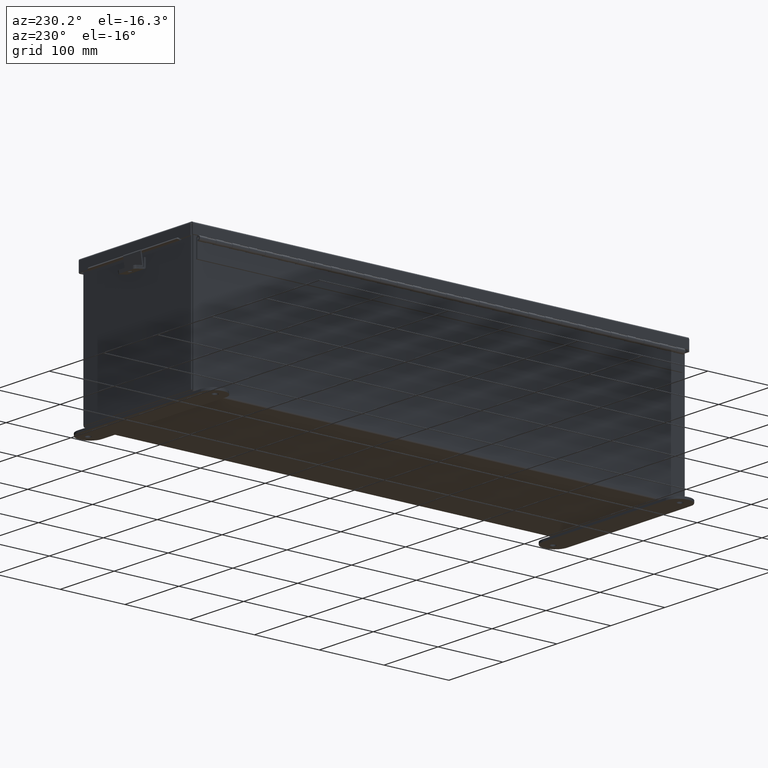
[diagram: clean part render]
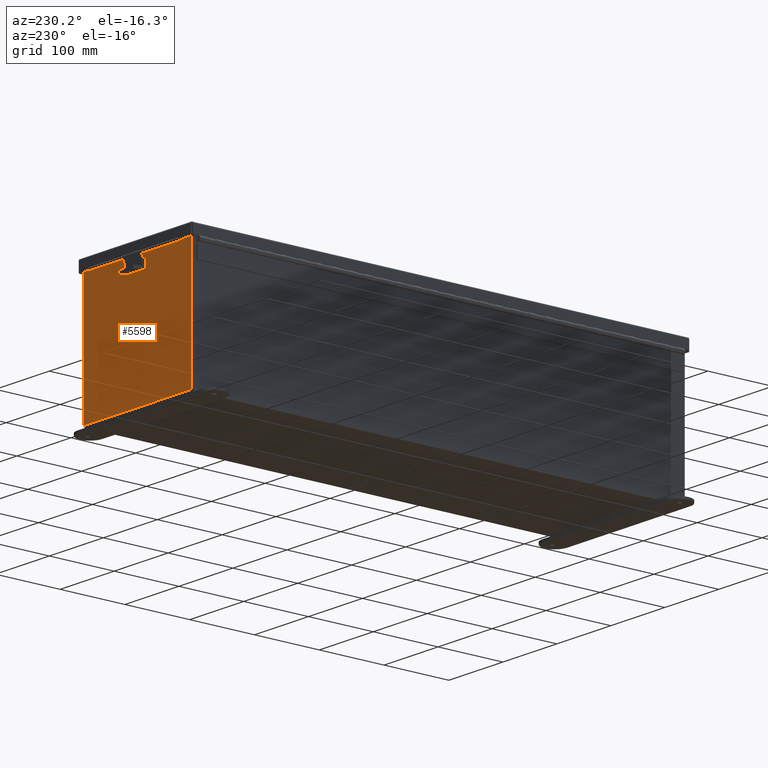
[diagram: same view with one face highlighted and labeled with its STEP entity id]
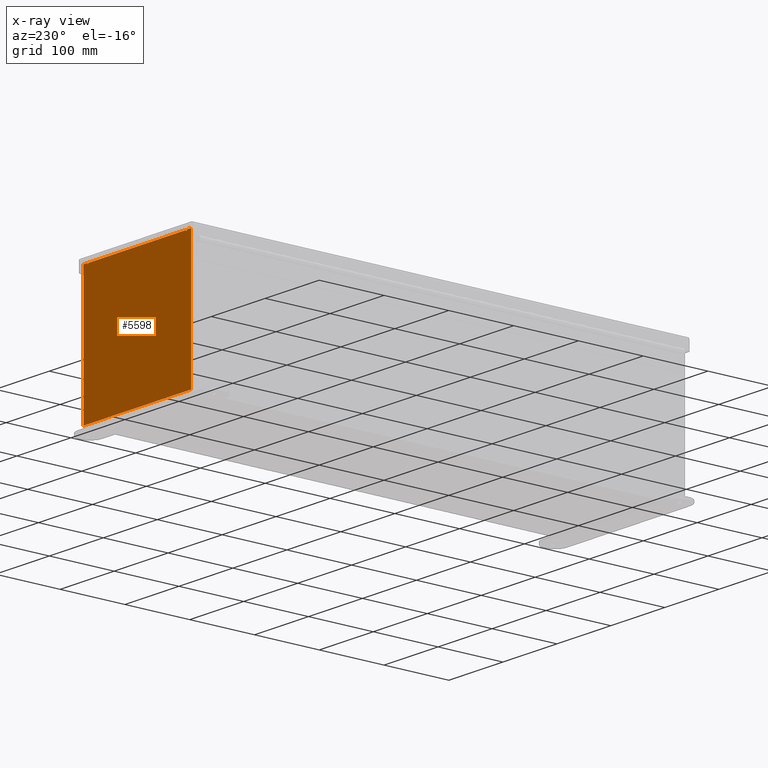
[diagram: x-ray of the same camera — body ghosted, the highlighted face saturated]
A machine part, auxiliary view. The second image highlights one B-rep face of the part: STEP entity #5598.
The next image is the same camera in x-ray: the body ghosted, the highlighted face saturated — about 0% of this face is hidden behind the body in this view.
In plain terms, the highlighted planar face has unit normal (0, -1, 0).
Its self-contained STEP definition (entity closure, byte-faithful):
#1 = DIRECTION ( 'NONE',  ( 0.0000000000000000000, 0.0000000000000000000, 1.000000000000000000 ) ) ;
#317 = AXIS2_PLACEMENT_3D ( 'NONE', #21080, #8967, #23112 ) ;
#1157 = CARTESIAN_POINT ( 'NONE',  ( -3.619650000000000500, 0.0000000000000000000, 3.874949999999998300 ) ) ;
#1283 = CARTESIAN_POINT ( 'NONE',  ( -3.925300000000000500, 0.0000000000000000000, 3.925299999999999600 ) ) ;
#1694 = EDGE_CURVE ( 'NONE', #21033, #24131, #12724, .T. ) ;
#1924 = ORIENTED_EDGE ( 'NONE', *, *, #1694, .F. ) ;
#2482 = VECTOR ( 'NONE', #17531, 39.37007874015748100 ) ;
#3112 = LINE ( 'NONE', #23571, #2482 ) ;
#3298 = VERTEX_POINT ( 'NONE', #21872 ) ;
#3884 = DIRECTION ( 'NONE',  ( -2.170286390199978800E-014, 0.0000000000000000000, -1.000000000000000000 ) ) ;
#3994 = VERTEX_POINT ( 'NONE', #11579 ) ;
#4428 = AXIS2_PLACEMENT_3D ( 'NONE', #23076, #19080, #6979 ) ;
#4544 = CARTESIAN_POINT ( 'NONE',  ( -3.582300000000000000, 0.0000000000000000000, 3.874949999999998300 ) ) ;
#4545 = ORIENTED_EDGE ( 'NONE', *, *, #25645, .F. ) ;
#4596 = VERTEX_POINT ( 'NONE', #25622 ) ;
#4970 = PLANE ( 'NONE',  #4428 ) ;
#5030 = CARTESIAN_POINT ( 'NONE',  ( 3.600974999999999100, 0.0000000000000000000, 3.874949999999998300 ) ) ;
#5077 = LINE ( 'NONE', #22023, #20553 ) ;
#5239 = LINE ( 'NONE', #1283, #8704 ) ;
#5598 = ADVANCED_FACE ( 'NONE', ( #17293 ), #4970, .F. ) ;
#5805 = CARTESIAN_POINT ( 'NONE',  ( 3.582299999999999200, 0.0000000000000000000, 3.874949999999998300 ) ) ;
#5943 = EDGE_CURVE ( 'NONE', #18909, #17115, #21078, .T. ) ;
#6030 = CARTESIAN_POINT ( 'NONE',  ( 3.582299999999999200, 0.0000000000000000000, 0.0000000000000000000 ) ) ;
#6213 = VECTOR ( 'NONE', #7089, 39.37007874015748100 ) ;
#6712 = EDGE_CURVE ( 'NONE', #6801, #25516, #5239, .T. ) ;
#6801 = VERTEX_POINT ( 'NONE', #9589 ) ;
#6903 = VERTEX_POINT ( 'NONE', #5805 ) ;
#6979 = DIRECTION ( 'NONE',  ( 0.0000000000000000000, -0.0000000000000000000, -1.000000000000000000 ) ) ;
#7036 = DIRECTION ( 'NONE',  ( 0.0000000000000000000, 0.0000000000000000000, -1.000000000000000000 ) ) ;
#7089 = DIRECTION ( 'NONE',  ( 0.0000000000000000000, 0.0000000000000000000, -1.000000000000000000 ) ) ;
#7628 = DIRECTION ( 'NONE',  ( 1.000000000000000000, 0.0000000000000000000, 0.0000000000000000000 ) ) ;
#8642 = CARTESIAN_POINT ( 'NONE',  ( -3.619650000000000500, 0.0000000000000000000, 3.925299999999999600 ) ) ;
#8704 = VECTOR ( 'NONE', #15410, 39.37007874015748100 ) ;
#8967 = DIRECTION ( 'NONE',  ( -0.0000000000000000000, 1.000000000000000000, -0.0000000000000000000 ) ) ;
#9015 = VECTOR ( 'NONE', #23066, 39.37007874015748100 ) ;
#9090 = EDGE_CURVE ( 'NONE', #3298, #6903, #14254, .T. ) ;
#9257 = EDGE_CURVE ( 'NONE', #3994, #9715, #19975, .T. ) ;
#9589 = CARTESIAN_POINT ( 'NONE',  ( 3.619650000000000500, 0.0000000000000000000, 3.925299999999999600 ) ) ;
#9715 = VERTEX_POINT ( 'NONE', #13519 ) ;
#10821 = VECTOR ( 'NONE', #1, 39.37007874015748100 ) ;
#10946 = CARTESIAN_POINT ( 'NONE',  ( -3.925300000000000500, 0.0000000000000000000, 3.925299999999999600 ) ) ;
#10974 = DIRECTION ( 'NONE',  ( 1.000000000000000000, 0.0000000000000000000, 0.0000000000000000000 ) ) ;
#11216 = ORIENTED_EDGE ( 'NONE', *, *, #21464, .F. ) ;
#11465 = EDGE_CURVE ( 'NONE', #24131, #26134, #12940, .T. ) ;
#11579 = CARTESIAN_POINT ( 'NONE',  ( -3.582300000000000000, 2.185478394931410600E-015, 3.912299999999999700 ) ) ;
#12325 = VECTOR ( 'NONE', #15021, 39.37007874015748100 ) ;
#12372 = ORIENTED_EDGE ( 'NONE', *, *, #11465, .F. ) ;
#12724 = CIRCLE ( 'NONE', #317, 0.01867500000000003900 ) ;
#12818 = VECTOR ( 'NONE', #10974, 39.37007874015748100 ) ;
#12940 = LINE ( 'NONE', #14912, #12325 ) ;
#13519 = CARTESIAN_POINT ( 'NONE',  ( 3.582299999999999200, 0.0000000000000000000, 3.912299999999999700 ) ) ;
#14254 = CIRCLE ( 'NONE', #19051, 0.01867500000000003900 ) ;
#14361 = LINE ( 'NONE', #10946, #9015 ) ;
#14912 = CARTESIAN_POINT ( 'NONE',  ( -3.619650000000000500, 0.0000000000000000000, 0.0000000000000000000 ) ) ;
#14925 = EDGE_CURVE ( 'NONE', #4596, #26134, #24884, .T. ) ;
#14979 = EDGE_CURVE ( 'NONE', #3994, #21033, #19483, .T. ) ;
#15021 = DIRECTION ( 'NONE',  ( 0.0000000000000000000, 0.0000000000000000000, 1.000000000000000000 ) ) ;
#15189 = ORIENTED_EDGE ( 'NONE', *, *, #15550, .T. ) ;
#15410 = DIRECTION ( 'NONE',  ( 1.000000000000000000, 0.0000000000000000000, 0.0000000000000000000 ) ) ;
#15550 = EDGE_CURVE ( 'NONE', #17115, #4596, #14361, .T. ) ;
#16658 = ORIENTED_EDGE ( 'NONE', *, *, #9257, .T. ) ;
#17115 = VERTEX_POINT ( 'NONE', #26235 ) ;
#17293 = FACE_OUTER_BOUND ( 'NONE', #22407, .T. ) ;
#17531 = DIRECTION ( 'NONE',  ( 0.0000000000000000000, 0.0000000000000000000, -1.000000000000000000 ) ) ;
#18909 = VERTEX_POINT ( 'NONE', #23090 ) ;
#19000 = CARTESIAN_POINT ( 'NONE',  ( -3.925300000000000500, 0.0000000000000000000, 3.925299999999999600 ) ) ;
#19051 = AXIS2_PLACEMENT_3D ( 'NONE', #5030, #19153, #7036 ) ;
#19080 = DIRECTION ( 'NONE',  ( 0.0000000000000000000, -1.000000000000000000, 0.0000000000000000000 ) ) ;
#19153 = DIRECTION ( 'NONE',  ( -0.0000000000000000000, 1.000000000000000000, -0.0000000000000000000 ) ) ;
#19336 = VECTOR ( 'NONE', #7628, 39.37007874015748100 ) ;
#19483 = LINE ( 'NONE', #21214, #6213 ) ;
#19624 = ORIENTED_EDGE ( 'NONE', *, *, #14979, .F. ) ;
#19757 = ORIENTED_EDGE ( 'NONE', *, *, #5943, .T. ) ;
#19800 = VECTOR ( 'NONE', #23135, 39.37007874015748100 ) ;
#19975 = LINE ( 'NONE', #25871, #19336 ) ;
#20553 = VECTOR ( 'NONE', #3884, 39.37007874015748100 ) ;
#21033 = VERTEX_POINT ( 'NONE', #4544 ) ;
#21078 = LINE ( 'NONE', #21108, #19800 ) ;
#21080 = CARTESIAN_POINT ( 'NONE',  ( -3.600975000000000000, 0.0000000000000000000, 3.874949999999998300 ) ) ;
#21108 = CARTESIAN_POINT ( 'NONE',  ( -3.925300000000000500, 0.0000000000000000000, -3.925300000000000500 ) ) ;
#21214 = CARTESIAN_POINT ( 'NONE',  ( -3.582300000000000000, 0.0000000000000000000, 0.0000000000000000000 ) ) ;
#21464 = EDGE_CURVE ( 'NONE', #6801, #3298, #5077, .T. ) ;
#21571 = LINE ( 'NONE', #6030, #10821 ) ;
#21757 = CARTESIAN_POINT ( 'NONE',  ( 3.925299999999999100, 0.0000000000000000000, 3.925299999999999600 ) ) ;
#21872 = CARTESIAN_POINT ( 'NONE',  ( 3.619649999999999100, 0.0000000000000000000, 3.874949999999998300 ) ) ;
#22023 = CARTESIAN_POINT ( 'NONE',  ( 3.619649999999915200, 0.0000000000000000000, -7.867722221753078700E-014 ) ) ;
#22407 = EDGE_LOOP ( 'NONE', ( #12372, #1924, #19624, #16658, #4545, #23771, #11216, #25616, #24879, #19757, #15189, #23539 ) ) ;
#22485 = EDGE_CURVE ( 'NONE', #25516, #18909, #3112, .T. ) ;
#23066 = DIRECTION ( 'NONE',  ( -0.0000000000000000000, -0.0000000000000000000, 1.000000000000000000 ) ) ;
#23076 = CARTESIAN_POINT ( 'NONE',  ( 0.0000000000000000000, 0.0000000000000000000, 0.0000000000000000000 ) ) ;
#23090 = CARTESIAN_POINT ( 'NONE',  ( 3.925299999999999100, 0.0000000000000000000, -3.925300000000000500 ) ) ;
#23112 = DIRECTION ( 'NONE',  ( 0.0000000000000000000, 0.0000000000000000000, -1.000000000000000000 ) ) ;
#23135 = DIRECTION ( 'NONE',  ( -1.000000000000000000, -0.0000000000000000000, -0.0000000000000000000 ) ) ;
#23539 = ORIENTED_EDGE ( 'NONE', *, *, #14925, .T. ) ;
#23571 = CARTESIAN_POINT ( 'NONE',  ( 3.925299999999999100, 0.0000000000000000000, 3.925299999999999600 ) ) ;
#23771 = ORIENTED_EDGE ( 'NONE', *, *, #9090, .F. ) ;
#24131 = VERTEX_POINT ( 'NONE', #1157 ) ;
#24879 = ORIENTED_EDGE ( 'NONE', *, *, #22485, .T. ) ;
#24884 = LINE ( 'NONE', #19000, #12818 ) ;
#25516 = VERTEX_POINT ( 'NONE', #21757 ) ;
#25616 = ORIENTED_EDGE ( 'NONE', *, *, #6712, .T. ) ;
#25622 = CARTESIAN_POINT ( 'NONE',  ( -3.925300000000000500, 0.0000000000000000000, 3.925299999999999600 ) ) ;
#25645 = EDGE_CURVE ( 'NONE', #6903, #9715, #21571, .T. ) ;
#25871 = CARTESIAN_POINT ( 'NONE',  ( -3.582300000000000000, 2.185478394931410600E-015, 3.912299999999999700 ) ) ;
#26134 = VERTEX_POINT ( 'NONE', #8642 ) ;
#26235 = CARTESIAN_POINT ( 'NONE',  ( -3.925300000000000500, 0.0000000000000000000, -3.925300000000000500 ) ) ;